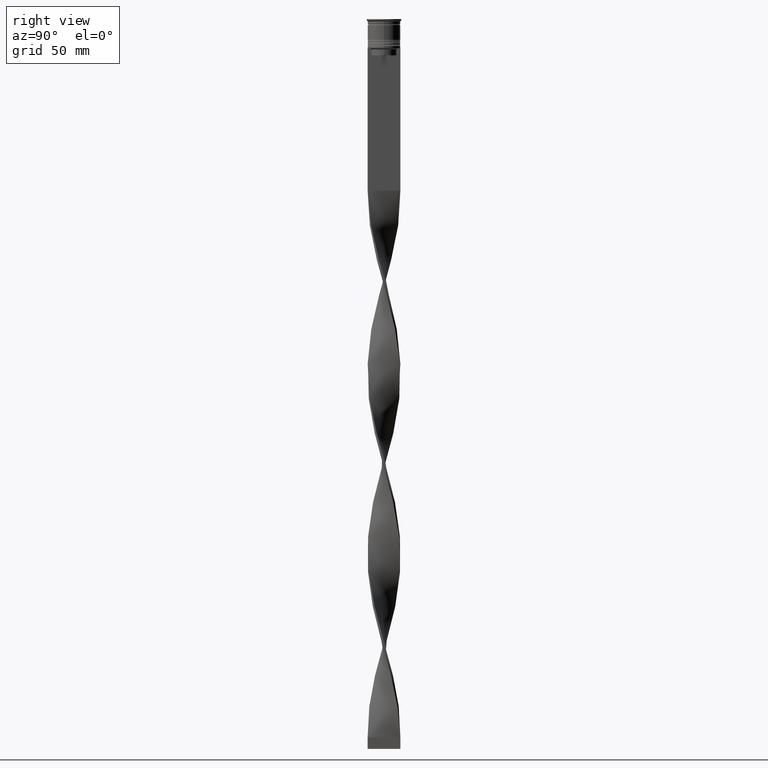
[diagram: clean part render]
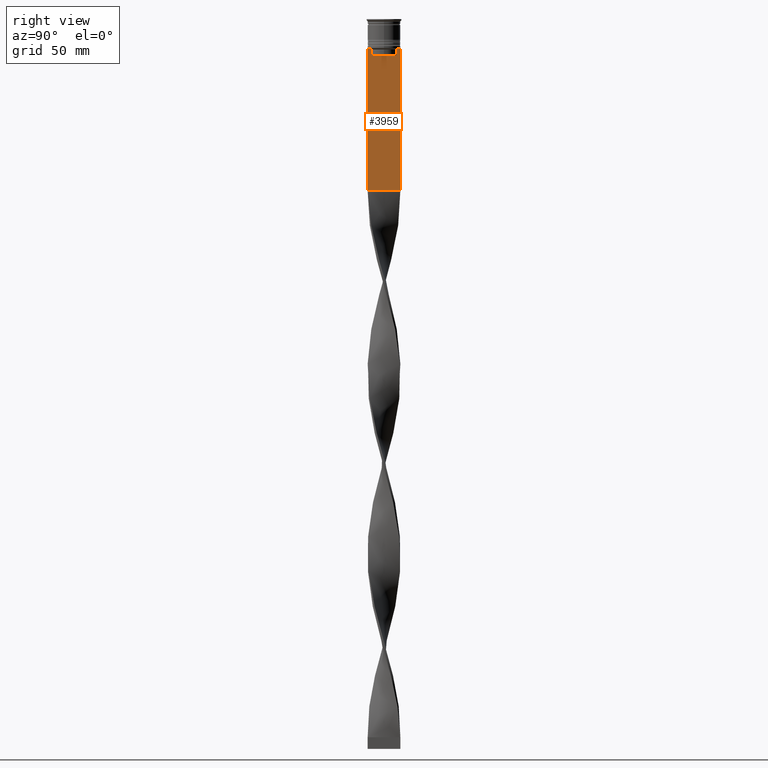
[diagram: same view with one face highlighted and labeled with its STEP entity id]
A machine part, right view. The second image highlights one B-rep face of the part: STEP entity #3959.
In plain terms, the highlighted planar face has unit normal (-1, 0, 0).
Its self-contained STEP definition (entity closure, byte-faithful):
#89 = LINE ( 'NONE', #2927, #737 ) ;
#99 = VECTOR ( 'NONE', #842, 1000.000000000000000 ) ;
#101 = CARTESIAN_POINT ( 'NONE',  ( 0.5000000000000000000, 5.711478846560141598, -12.66669470477064685 ) ) ;
#106 = CARTESIAN_POINT ( 'NONE',  ( 0.5000000000000000000, 5.376802023508029826, 0.000000000000000000 ) ) ;
#165 = DIRECTION ( 'NONE',  ( -1.000000000000000000, 0.000000000000000000, 0.000000000000000000 ) ) ;
#168 = VERTEX_POINT ( 'NONE', #256 ) ;
#170 = DIRECTION ( 'NONE',  ( 0.000000000000000000, 1.000000000000000000, 0.000000000000000000 ) ) ;
#228 = VECTOR ( 'NONE', #2445, 1000.000000000000000 ) ;
#247 = CARTESIAN_POINT ( 'NONE',  ( 0.5000000000000000000, -6.999999999999997335, 1.535668847618198329 ) ) ;
#256 = CARTESIAN_POINT ( 'NONE',  ( 0.5000000000000000000, 5.376802023508029826, -13.00000000000000178 ) ) ;
#267 = CARTESIAN_POINT ( 'NONE',  ( 0.5000000000000000000, -5.376802023508029826, -15.50000000000000000 ) ) ;
#336 = ORIENTED_EDGE ( 'NONE', *, *, #2869, .T. ) ;
#359 = CARTESIAN_POINT ( 'NONE',  ( 0.5000000000000000000, -6.999999999999997335, -12.50000000000000000 ) ) ;
#491 = DIRECTION ( 'NONE',  ( 0.000000000000000000, 0.000000000000000000, -1.000000000000000000 ) ) ;
#499 = EDGE_CURVE ( 'NONE', #3656, #3443, #89, .T. ) ;
#505 = EDGE_CURVE ( 'NONE', #703, #3820, #721, .T. ) ;
#564 = DIRECTION ( 'NONE',  ( 0.000000000000000000, -1.000000000000000000, 0.000000000000000000 ) ) ;
#579 = CARTESIAN_POINT ( 'NONE',  ( 0.5000000000000000000, -5.878775382679629402, -12.50000000000000000 ) ) ;
#703 = VERTEX_POINT ( 'NONE', #579 ) ;
#721 = LINE ( 'NONE', #1125, #2260 ) ;
#737 = VECTOR ( 'NONE', #170, 1000.000000000000000 ) ;
#771 = ORIENTED_EDGE ( 'NONE', *, *, #2172, .T. ) ;
#837 = CARTESIAN_POINT ( 'NONE',  ( 0.5000000000000000000, -6.999999999999997335, -12.50000000000000000 ) ) ;
#842 = DIRECTION ( 'NONE',  ( 0.000000000000000000, -1.000000000000000000, 0.000000000000000000 ) ) ;
#845 = ORIENTED_EDGE ( 'NONE', *, *, #2354, .T. ) ;
#864 = CARTESIAN_POINT ( 'NONE',  ( 0.5000000000000000000, 7.000000000000002665, -73.50000000000001421 ) ) ;
#892 = DIRECTION ( 'NONE',  ( 0.000000000000000000, -1.000000000000000000, 0.000000000000000000 ) ) ;
#894 = ORIENTED_EDGE ( 'NONE', *, *, #2267, .T. ) ;
#897 = ORIENTED_EDGE ( 'NONE', *, *, #1118, .T. ) ;
#939 = EDGE_CURVE ( 'NONE', #2129, #703, #1949, .T. ) ;
#956 = VERTEX_POINT ( 'NONE', #2723 ) ;
#1077 = LINE ( 'NONE', #1711, #99 ) ;
#1080 = LINE ( 'NONE', #106, #3156 ) ;
#1086 = DIRECTION ( 'NONE',  ( 0.000000000000000000, -1.000000000000000000, 0.000000000000000000 ) ) ;
#1118 = EDGE_CURVE ( 'NONE', #2489, #3418, #3653, .T. ) ;
#1125 = CARTESIAN_POINT ( 'NONE',  ( 0.5000000000000000000, -6.999999999999997335, -12.50000000000000000 ) ) ;
#1155 = ORIENTED_EDGE ( 'NONE', *, *, #939, .T. ) ;
#1156 = CARTESIAN_POINT ( 'NONE',  ( 0.5000000000000000000, 6.881860213634102053, -12.50000000000000000 ) ) ;
#1194 = LINE ( 'NONE', #837, #3219 ) ;
#1366 = CARTESIAN_POINT ( 'NONE',  ( 0.5000000000000000000, 5.544156989057553275, -12.83336397825725861 ) ) ;
#1368 = EDGE_CURVE ( 'NONE', #3714, #3656, #2805, .T. ) ;
#1429 = FACE_OUTER_BOUND ( 'NONE', #3607, .T. ) ;
#1579 = ORIENTED_EDGE ( 'NONE', *, *, #505, .T. ) ;
#1613 = CARTESIAN_POINT ( 'NONE',  ( 0.5000000000000000000, 7.000000000000002665, 1.535668847618198329 ) ) ;
#1638 = LINE ( 'NONE', #1613, #3737 ) ;
#1671 = CARTESIAN_POINT ( 'NONE',  ( 0.5000000000000000000, 5.878775382679629402, -12.50000000000000000 ) ) ;
#1678 = ORIENTED_EDGE ( 'NONE', *, *, #2171, .F. ) ;
#1711 = CARTESIAN_POINT ( 'NONE',  ( 0.5000000000000000000, -6.999999999999997335, -12.50000000000000000 ) ) ;
#1728 = CARTESIAN_POINT ( 'NONE',  ( 0.5000000000000000000, -5.376802023508029826, -13.00000000000000178 ) ) ;
#1949 = B_SPLINE_CURVE_WITH_KNOTS ( 'NONE', 3,
 ( #1728, #2353, #2049, #3043 ),
 .UNSPECIFIED., .F., .F.,
 ( 4, 4 ),
 ( 0.02539176325380714666, 0.02610162431828674801 ),
 .UNSPECIFIED. ) ;
#1962 = CARTESIAN_POINT ( 'NONE',  ( 0.5000000000000000000, -5.376802023508029826, -13.00000000000000178 ) ) ;
#2004 = PLANE ( 'NONE',  #3225 ) ;
#2005 = ORIENTED_EDGE ( 'NONE', *, *, #3808, .T. ) ;
#2044 = CARTESIAN_POINT ( 'NONE',  ( 0.5000000000000000000, -6.999999999999997335, -73.50000000000001421 ) ) ;
#2049 = CARTESIAN_POINT ( 'NONE',  ( 0.5000000000000000000, -5.711478856069293286, -12.66669469529570335 ) ) ;
#2119 = ORIENTED_EDGE ( 'NONE', *, *, #2916, .T. ) ;
#2129 = VERTEX_POINT ( 'NONE', #1962 ) ;
#2130 = VECTOR ( 'NONE', #3672, 1000.000000000000000 ) ;
#2142 = VECTOR ( 'NONE', #3237, 1000.000000000000000 ) ;
#2171 = EDGE_CURVE ( 'NONE', #956, #3443, #1638, .T. ) ;
#2172 = EDGE_CURVE ( 'NONE', #2799, #3421, #3561, .T. ) ;
#2260 = VECTOR ( 'NONE', #1086, 1000.000000000000000 ) ;
#2264 = CARTESIAN_POINT ( 'NONE',  ( 0.5000000000000000000, 5.400000000000003908, -15.50000000000000000 ) ) ;
#2267 = EDGE_CURVE ( 'NONE', #3418, #168, #2537, .T. ) ;
#2293 = CARTESIAN_POINT ( 'NONE',  ( 0.5000000000000000000, -6.881860213634102053, -12.50000000000000000 ) ) ;
#2328 = CARTESIAN_POINT ( 'NONE',  ( 0.5000000000000000000, 5.376802023508029826, -13.00000000000000178 ) ) ;
#2330 = VECTOR ( 'NONE', #892, 1000.000000000000000 ) ;
#2353 = CARTESIAN_POINT ( 'NONE',  ( 0.5000000000000000000, -5.544156999454441959, -12.83336396790503642 ) ) ;
#2354 = EDGE_CURVE ( 'NONE', #956, #2489, #1077, .T. ) ;
#2445 = DIRECTION ( 'NONE',  ( -0.000000000000000000, -0.000000000000000000, 1.000000000000000000 ) ) ;
#2489 = VERTEX_POINT ( 'NONE', #1156 ) ;
#2537 = B_SPLINE_CURVE_WITH_KNOTS ( 'NONE', 3,
 ( #1671, #101, #1366, #2328 ),
 .UNSPECIFIED., .F., .F.,
 ( 4, 4 ),
 ( 0.01003009312103698807, 0.01073859663834952557 ),
 .UNSPECIFIED. ) ;
#2564 = DIRECTION ( 'NONE',  ( 0.000000000000000000, 0.000000000000000000, -1.000000000000000000 ) ) ;
#2588 = ORIENTED_EDGE ( 'NONE', *, *, #499, .T. ) ;
#2691 = DIRECTION ( 'NONE',  ( 0.000000000000000000, 0.000000000000000000, 1.000000000000000000 ) ) ;
#2723 = CARTESIAN_POINT ( 'NONE',  ( 0.5000000000000000000, 7.000000000000002665, -12.50000000000000000 ) ) ;
#2788 = CARTESIAN_POINT ( 'NONE',  ( 0.5000000000000000000, 5.376802023508029826, -15.50000000000000000 ) ) ;
#2799 = VERTEX_POINT ( 'NONE', #2788 ) ;
#2805 = LINE ( 'NONE', #247, #2130 ) ;
#2869 = EDGE_CURVE ( 'NONE', #3421, #2129, #4012, .T. ) ;
#2916 = EDGE_CURVE ( 'NONE', #3820, #3714, #1194, .T. ) ;
#2927 = CARTESIAN_POINT ( 'NONE',  ( 0.5000000000000000000, -6.999999999999997335, -73.50000000000001421 ) ) ;
#2956 = ORIENTED_EDGE ( 'NONE', *, *, #1368, .T. ) ;
#3043 = CARTESIAN_POINT ( 'NONE',  ( 0.5000000000000000000, -5.878775382679629402, -12.50000000000000000 ) ) ;
#3123 = CARTESIAN_POINT ( 'NONE',  ( 0.5000000000000000000, -5.376802023508029826, 0.000000000000000000 ) ) ;
#3156 = VECTOR ( 'NONE', #491, 1000.000000000000000 ) ;
#3219 = VECTOR ( 'NONE', #564, 1000.000000000000000 ) ;
#3225 = AXIS2_PLACEMENT_3D ( 'NONE', #3276, #165, #2691 ) ;
#3237 = DIRECTION ( 'NONE',  ( 0.000000000000000000, -1.000000000000000000, 0.000000000000000000 ) ) ;
#3276 = CARTESIAN_POINT ( 'NONE',  ( 0.5000000000000000000, -6.999999999999997335, 1.535668847618198329 ) ) ;
#3418 = VERTEX_POINT ( 'NONE', #3678 ) ;
#3421 = VERTEX_POINT ( 'NONE', #267 ) ;
#3443 = VERTEX_POINT ( 'NONE', #864 ) ;
#3561 = LINE ( 'NONE', #2264, #2142 ) ;
#3607 = EDGE_LOOP ( 'NONE', ( #897, #894, #2005, #771, #336, #1155, #1579, #2119, #2956, #2588, #1678, #845 ) ) ;
#3653 = LINE ( 'NONE', #4048, #2330 ) ;
#3656 = VERTEX_POINT ( 'NONE', #2044 ) ;
#3672 = DIRECTION ( 'NONE',  ( 0.000000000000000000, 0.000000000000000000, -1.000000000000000000 ) ) ;
#3678 = CARTESIAN_POINT ( 'NONE',  ( 0.5000000000000000000, 5.878775382679629402, -12.50000000000000000 ) ) ;
#3714 = VERTEX_POINT ( 'NONE', #359 ) ;
#3737 = VECTOR ( 'NONE', #2564, 1000.000000000000000 ) ;
#3808 = EDGE_CURVE ( 'NONE', #168, #2799, #1080, .T. ) ;
#3820 = VERTEX_POINT ( 'NONE', #2293 ) ;
#3959 = ADVANCED_FACE ( 'NONE', ( #1429 ), #2004, .F. ) ;
#4012 = LINE ( 'NONE', #3123, #228 ) ;
#4048 = CARTESIAN_POINT ( 'NONE',  ( 0.5000000000000000000, -6.999999999999997335, -12.50000000000000000 ) ) ;